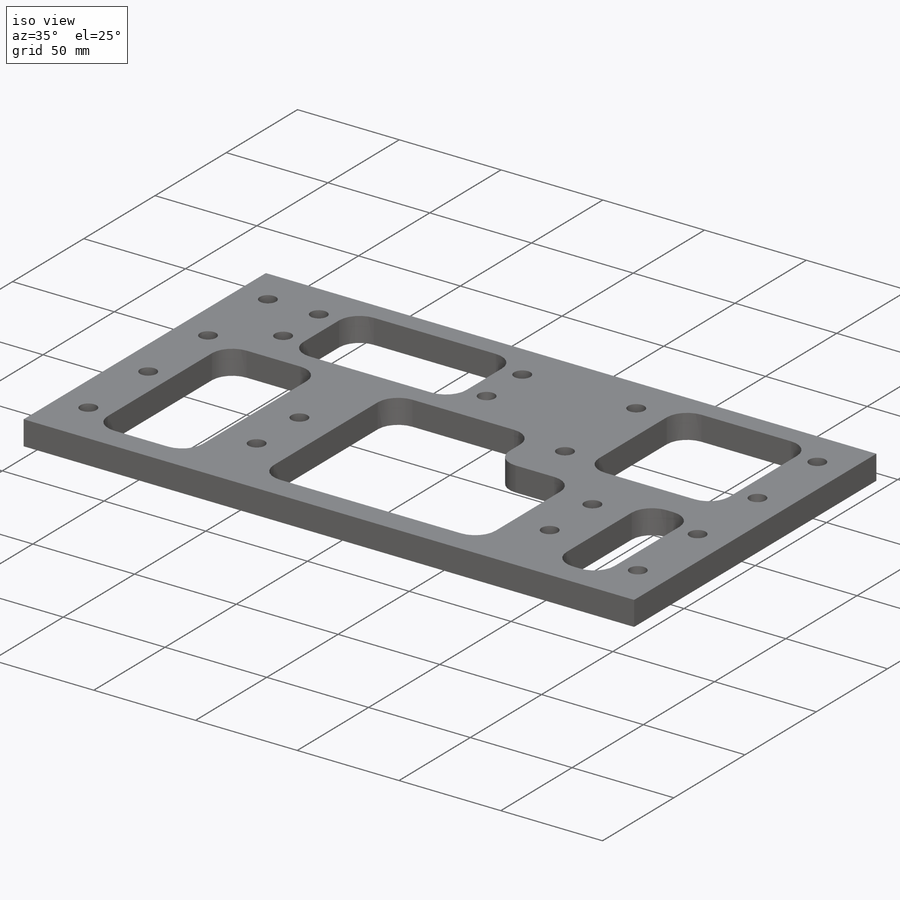
[diagram: iso view]
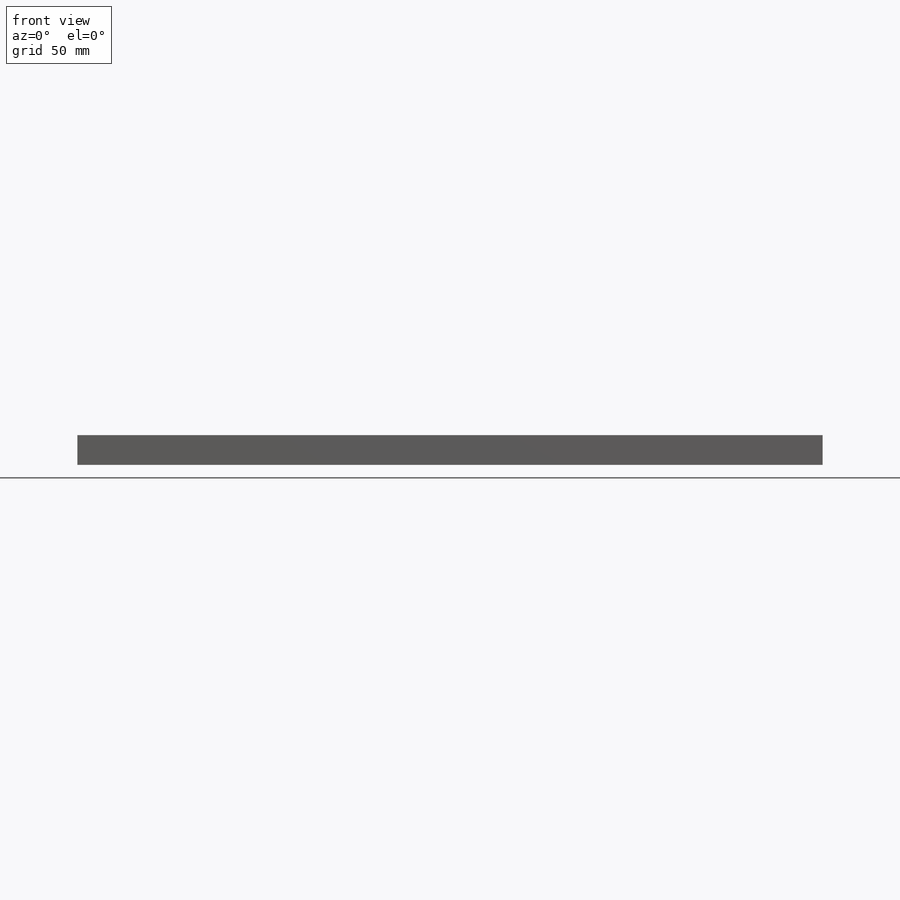
[diagram: front view]
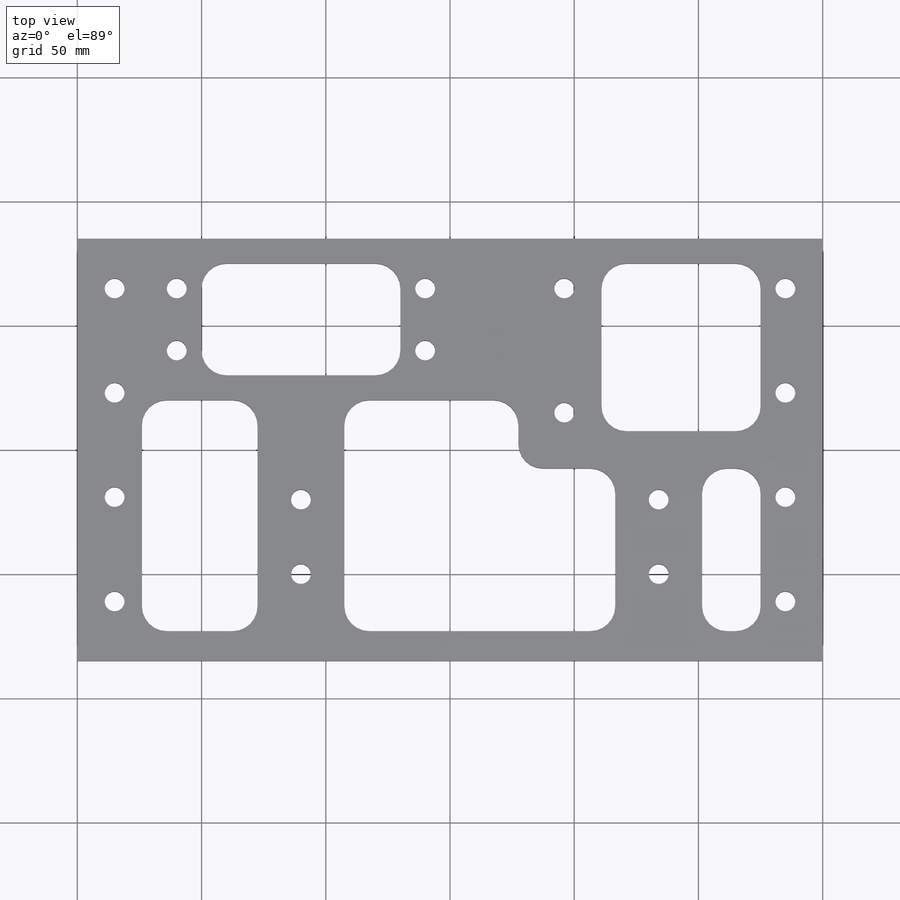
[diagram: top view]
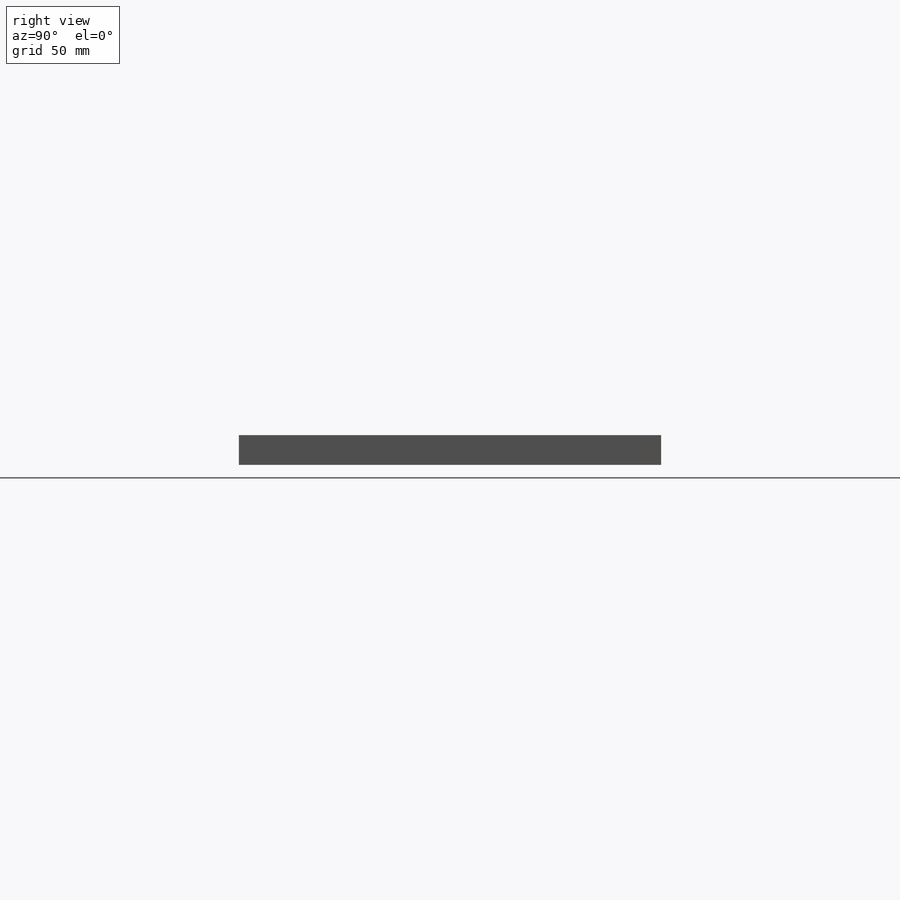
[diagram: right view]
SOLIDWORKS PART (.sldprt)
format: sldprt  version: not decoded by parser v0  size: 441,344 bytes
history: native  units: mm
features: sketch x5, cut_extrude x4, material x1, extrude x1, mirror x1, fillet x1 (+13 scaffold rows collapsed)
feature tree (26):
  scaffold x13  (default folders/planes/origin — collapsed)
  material  "6061-T6 (SS)"
  sketch  "Sketch1"  dims[D1=170.0mm D2=300.0mm]
  extrude  "Boss-Extrude1"  Depth=12mm
  sketch  "Sketch2"  dims[c1.D3=8.0mm c1.D1=20.0mm c1.D2=15.0mm c1.D4=250.0mm c1.D5=15.0mm c1.D6=20.0mm c2.D4=6.0]
  cut_extrude  "Cut-Extrude1"  [1 undecoded]
  mirror  "Mirror1"
  sketch  "Sketch4"  dims[D1=8.0mm D6=8.0mm D2=25.0mm D3=100.0mm D4=20.0mm D5=40.0mm D7=20.0mm D8=104.0mm D9=50.0mm]
  cut_extrude  "Cut-Extrude2"  [1 undecoded]
  sketch  "Sketch5"  dims[c1.D9=8.0mm c1.D10=8.0mm c1.D16=8.0mm c1.D1=10.0mm c1.D2=125.0mm c1.D3=50.0mm c1.D4=80.0mm c1.D5=70.0mm c1.D6=30.0mm c1.D7=40.0mm c1.D8=95.0mm c2.D2=12.5mm c2.D3=15.0mm c2.D1=10.0mm c3.D3=12.0mm c3.D4=20.0mm c3.D6=50.0mm c3.D8=30.0mm c3.D10=15.0mm c3.D11=35.0mm c3.D12=15.0mm c3.D13=42.0mm c3.D14=100.0mm c4.D3=42.0mm c4.D4=69.0mm c4.D12=21.0mm c4.D15=21.0mm c5.D3=35.0mm c5.D4=90.0mm c5.D8=30.0mm c5.D9=144.0mm]
  cut_extrude  "Cut-Extrude3"  [1 undecoded]
  sketch  "Sketch6"  dims[c1.D1=8.0mm c1.D15=75.0mm c1.D11=8.0mm c2.D1=90.0mm c2.D2=15.0mm c2.D3=55.0mm c2.D4=50.0mm c2.D5=142.0mm c2.D6=55.0mm c2.D7=15.0mm c2.D8=32.5mm c2.D9=80.0mm c2.D10=40.0mm c3.D8=90.0mm c3.D9=55.0mm c3.D10=32.5mm c3.D12=5.0mm c3.D13=5.0mm c3.D14=5.0mm c3.D16=5.0mm c3.D17=5.0mm c3.D18=5.0mm c3.D19=5.0mm c3.D20=~28.027592mm c4.D20=~0.664609deg c5.D20=10.0mm c5.D21=25.0mm c5.D11=15.0mm c5.D15=15.0mm c5.D8=32.5mm c5.D9=80.0mm c5.D10=45.0mm c6.D8=10.0mm c6.D12=10.0mm c6.D13=5.0mm c6.D14=12.0mm c6.D16=10.0mm c6.D17=10.0mm c6.D18=10.0mm c6.D19=10.0mm c6.D22=10.0mm c6.D23=10.0mm c6.D24=10.0mm c6.D25=5.0mm c6.D26=26.0mm c6.D27=70.0mm c7.D18=10.0mm c7.D11=4.0mm c7.D12=4.0mm c7.D13=4.0mm c7.D14=4.0mm c8.D11=10.0mm]
  cut_extrude  "Cut-Extrude4"  [1 undecoded]
  fillet  "Fillet1"  Radius=10mm
decode coverage: 7 of 12 modeling features carry decoded parameters
note: ~ marks probable driven/reference dimensions
note: 4 parameter values undecoded
summary: no parameter record found for 4 features
note: suppression state not decoded; provenance and decode notes live in map.json
